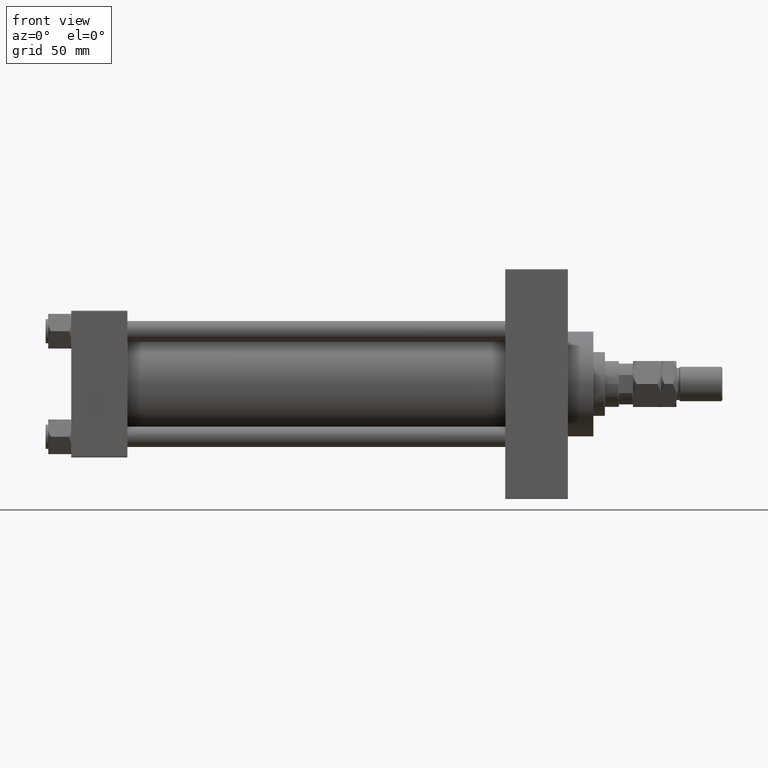
[diagram: clean part render]
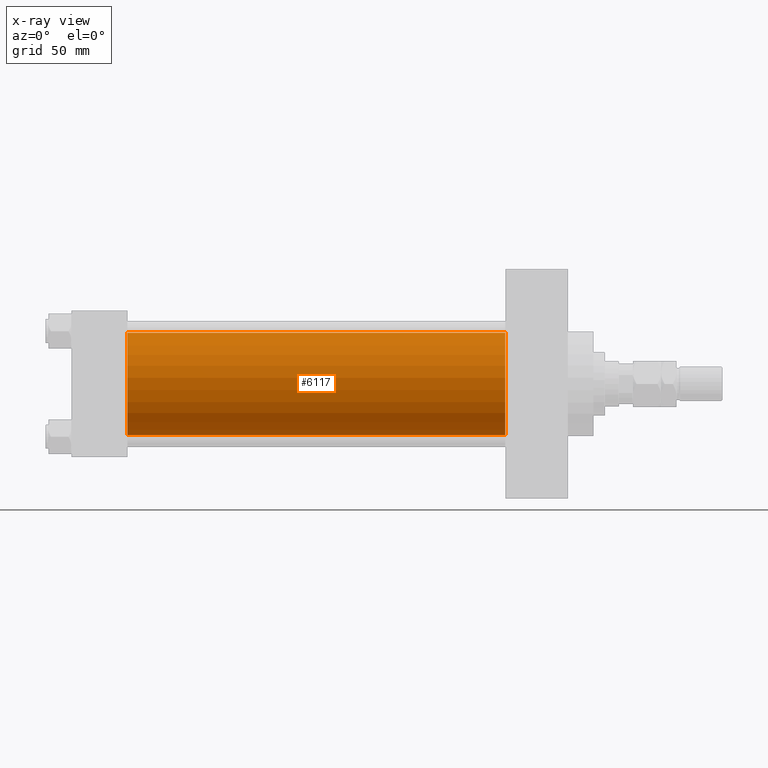
[diagram: x-ray — body ghosted, one internal face saturated and labeled with its STEP entity id]
A machine part, front view, then the same camera in x-ray: the body is ghosted and one INTERNAL B-rep face — a face not visible from any outside direction — is saturated and labeled: STEP entity #6117.
In plain terms, the highlighted cylindrical surface (partial cylindrical patch) has radius 40 mm, axis along (-1, -0, -0).
Its self-contained STEP definition (entity closure, byte-faithful):
#178 = ORIENTED_EDGE ( 'NONE', *, *, #30984, .T. ) ;
#1689 = EDGE_CURVE ( 'NONE', #50876, #20103, #46397, .T. ) ;
#3355 = DIRECTION ( 'NONE',  ( -1.000000000000000000, -0.000000000000000000, -0.000000000000000000 ) ) ;
#3559 = CARTESIAN_POINT ( 'NONE',  ( 339.9999999999999432, -2.602085213965210642E-15, 0.000000000000000000 ) ) ;
#4834 = EDGE_LOOP ( 'NONE', ( #178, #11795, #5314, #22199 ) ) ;
#5314 = ORIENTED_EDGE ( 'NONE', *, *, #23393, .F. ) ;
#6117 = ADVANCED_FACE ( 'NONE', ( #26842 ), #50322, .F. ) ;
#6846 = VERTEX_POINT ( 'NONE', #51479 ) ;
#10349 = EDGE_CURVE ( 'NONE', #6846, #34408, #11439, .T. ) ;
#11439 = LINE ( 'NONE', #23467, #35218 ) ;
#11795 = ORIENTED_EDGE ( 'NONE', *, *, #10349, .T. ) ;
#12221 = CIRCLE ( 'NONE', #28925, 40.00000000000000000 ) ;
#12454 = CARTESIAN_POINT ( 'NONE',  ( 339.9999999999999432, -2.602085213965210642E-15, 0.000000000000000000 ) ) ;
#14211 = AXIS2_PLACEMENT_3D ( 'NONE', #12454, #24473, #37012 ) ;
#19500 = DIRECTION ( 'NONE',  ( 0.000000000000000000, 0.000000000000000000, 1.000000000000000000 ) ) ;
#20103 = VERTEX_POINT ( 'NONE', #38169 ) ;
#21875 = DIRECTION ( 'NONE',  ( -1.000000000000000000, -0.000000000000000000, -0.000000000000000000 ) ) ;
#22199 = ORIENTED_EDGE ( 'NONE', *, *, #1689, .F. ) ;
#22302 = DIRECTION ( 'NONE',  ( 0.000000000000000000, 0.000000000000000000, -1.000000000000000000 ) ) ;
#23393 = EDGE_CURVE ( 'NONE', #20103, #34408, #12221, .T. ) ;
#23467 = CARTESIAN_POINT ( 'NONE',  ( 339.9999999999999432, 2.296501982624201990E-15, -40.00000000000000000 ) ) ;
#24473 = DIRECTION ( 'NONE',  ( 1.000000000000000000, 0.000000000000000000, 0.000000000000000000 ) ) ;
#26842 = FACE_OUTER_BOUND ( 'NONE', #4834, .T. ) ;
#27573 = AXIS2_PLACEMENT_3D ( 'NONE', #3559, #38828, #19500 ) ;
#28925 = AXIS2_PLACEMENT_3D ( 'NONE', #45823, #34062, #22302 ) ;
#29899 = CARTESIAN_POINT ( 'NONE',  ( 339.9999999999999432, -2.602085213965210642E-15, 40.00000000000000000 ) ) ;
#30984 = EDGE_CURVE ( 'NONE', #50876, #6846, #36736, .T. ) ;
#34062 = DIRECTION ( 'NONE',  ( 1.000000000000000000, 0.000000000000000000, 0.000000000000000000 ) ) ;
#34408 = VERTEX_POINT ( 'NONE', #35094 ) ;
#35094 = CARTESIAN_POINT ( 'NONE',  ( 44.00000000000000000, 2.296501982624201990E-15, -40.00000000000000000 ) ) ;
#35218 = VECTOR ( 'NONE', #3355, 1000.000000000000000 ) ;
#36736 = CIRCLE ( 'NONE', #14211, 40.00000000000000000 ) ;
#37012 = DIRECTION ( 'NONE',  ( 0.000000000000000000, 0.000000000000000000, -1.000000000000000000 ) ) ;
#38169 = CARTESIAN_POINT ( 'NONE',  ( 44.00000000000000000, -2.602085213965210642E-15, 40.00000000000000000 ) ) ;
#38828 = DIRECTION ( 'NONE',  ( -1.000000000000000000, -0.000000000000000000, -0.000000000000000000 ) ) ;
#45645 = CARTESIAN_POINT ( 'NONE',  ( 339.9999999999999432, -2.602085213965210642E-15, 40.00000000000000000 ) ) ;
#45755 = VECTOR ( 'NONE', #21875, 1000.000000000000000 ) ;
#45823 = CARTESIAN_POINT ( 'NONE',  ( 44.00000000000000000, -2.602085213965210642E-15, 0.000000000000000000 ) ) ;
#46397 = LINE ( 'NONE', #45645, #45755 ) ;
#50322 = CYLINDRICAL_SURFACE ( 'NONE', #27573, 40.00000000000000000 ) ;
#50876 = VERTEX_POINT ( 'NONE', #29899 ) ;
#51479 = CARTESIAN_POINT ( 'NONE',  ( 339.9999999999999432, 2.296501982624201990E-15, -40.00000000000000000 ) ) ;